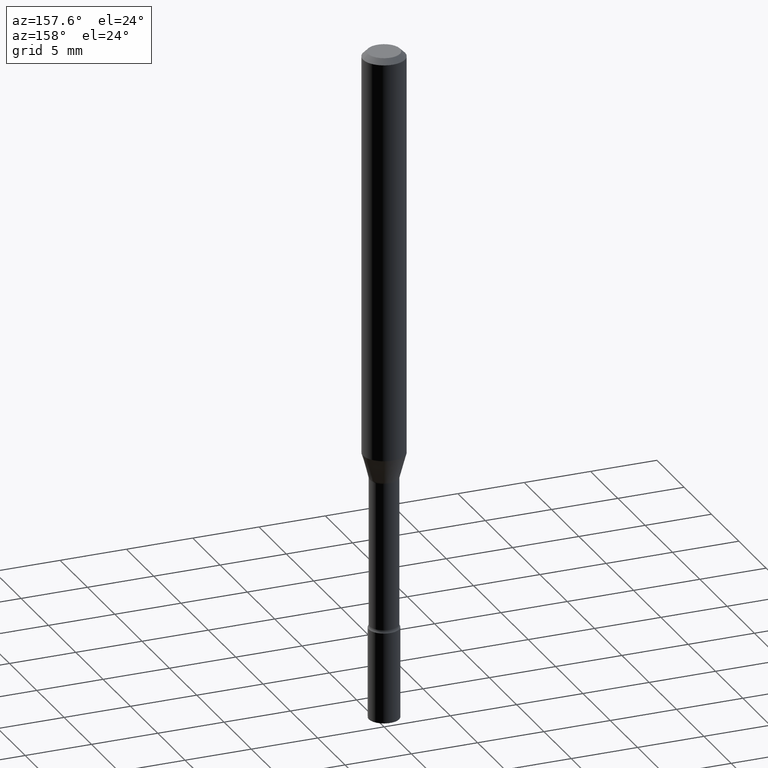
[diagram: clean part render]
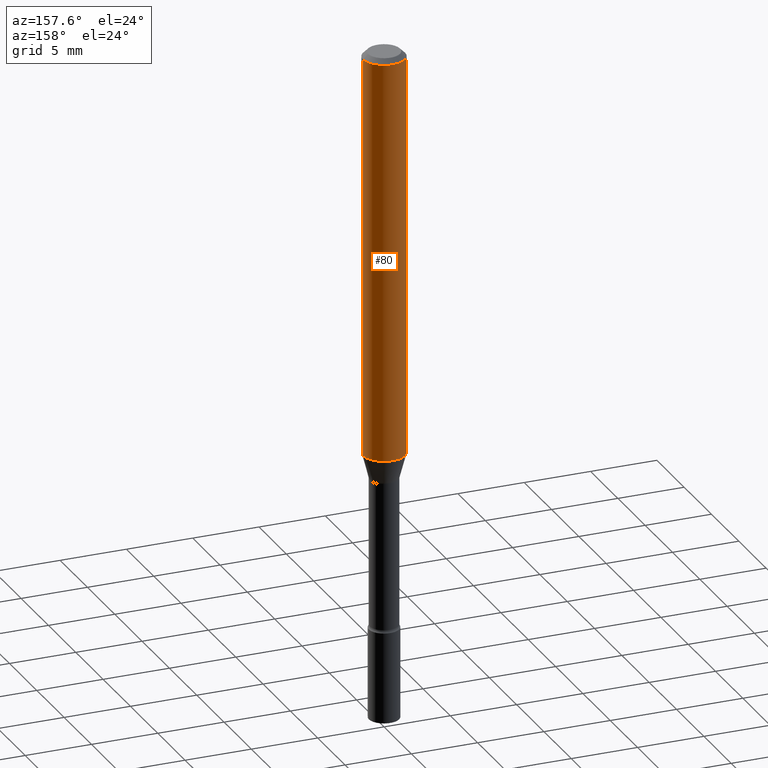
[diagram: same view with one face highlighted and labeled with its STEP entity id]
A machine part, auxiliary view. The second image highlights one B-rep face of the part: STEP entity #80.
In plain terms, the highlighted cylindrical surface (edge-blend (fillet) strip) has radius 1.5875 mm, axis along (-0, 0, 1).
Its self-contained STEP definition (entity closure, byte-faithful):
#16 = CARTESIAN_POINT ( 'NONE',  ( 2.945842472490219307E-29, -4.205882321564354559E-15, -1.204612573687108945 ) ) ;
#26 = DIRECTION ( 'NONE',  ( 1.000000000000000000, -6.982962677686266711E-15, 4.876176775795935793E-29 ) ) ;
#62 = DIRECTION ( 'NONE',  ( -2.445468806185136597E-29, 3.491481338843145583E-15, 1.000000000000000000 ) ) ;
#80 = ADVANCED_FACE ( 'NONE', ( #343 ), #308, .T. ) ;
#88 = LINE ( 'NONE', #128, #280 ) ;
#120 = ORIENTED_EDGE ( 'NONE', *, *, #431, .T. ) ;
#128 = CARTESIAN_POINT ( 'NONE',  ( -0.06250000000000000000, 4.440892098500626162E-16, -3.074334431409316114E-30 ) ) ;
#133 = AXIS2_PLACEMENT_3D ( 'NONE', #254, #62, #260 ) ;
#135 = EDGE_CURVE ( 'NONE', #517, #490, #482, .T. ) ;
#176 = DIRECTION ( 'NONE',  ( -2.445468806185136597E-29, 3.491481338843145583E-15, 1.000000000000000000 ) ) ;
#181 = ORIENTED_EDGE ( 'NONE', *, *, #135, .F. ) ;
#200 = DIRECTION ( 'NONE',  ( -2.445468806185136877E-29, 3.491481338843145188E-15, 1.000000000000000000 ) ) ;
#236 = EDGE_LOOP ( 'NONE', ( #515, #120, #181, #456 ) ) ;
#241 = DIRECTION ( 'NONE',  ( 1.000000000000000000, -6.982962677686270655E-15, 0.000000000000000000 ) ) ;
#242 = CARTESIAN_POINT ( 'NONE',  ( 0.06250000000000000000, -4.642317488919745439E-15, -1.204612573687108945 ) ) ;
#254 = CARTESIAN_POINT ( 'NONE',  ( 3.668203209277712094E-31, -5.237222008264728876E-17, -0.01500000000000003067 ) ) ;
#260 = DIRECTION ( 'NONE',  ( 1.000000000000000000, -6.982962677686266711E-15, 0.000000000000000000 ) ) ;
#272 = AXIS2_PLACEMENT_3D ( 'NONE', #16, #407, #241 ) ;
#273 = DIRECTION ( 'NONE',  ( -2.445468806185136877E-29, 3.491481338843145188E-15, 1.000000000000000000 ) ) ;
#279 = VECTOR ( 'NONE', #273, 39.37007874015748143 ) ;
#280 = VECTOR ( 'NONE', #200, 39.37007874015748143 ) ;
#283 = EDGE_CURVE ( 'NONE', #390, #517, #317, .T. ) ;
#292 = VERTEX_POINT ( 'NONE', #479 ) ;
#308 = CYLINDRICAL_SURFACE ( 'NONE', #334, 0.06250000000000000000 ) ;
#317 = LINE ( 'NONE', #439, #279 ) ;
#334 = AXIS2_PLACEMENT_3D ( 'NONE', #341, #176, #26 ) ;
#341 = CARTESIAN_POINT ( 'NONE',  ( 0.000000000000000000, 0.000000000000000000, 0.000000000000000000 ) ) ;
#343 = FACE_OUTER_BOUND ( 'NONE', #236, .T. ) ;
#390 = VERTEX_POINT ( 'NONE', #242 ) ;
#405 = EDGE_CURVE ( 'NONE', #390, #292, #462, .T. ) ;
#407 = DIRECTION ( 'NONE',  ( -2.445468806185136597E-29, 3.491481338843145583E-15, 1.000000000000000000 ) ) ;
#431 = EDGE_CURVE ( 'NONE', #292, #490, #88, .T. ) ;
#439 = CARTESIAN_POINT ( 'NONE',  ( 0.06250000000000000000, -4.364351673553916694E-16, 3.047610484872459871E-30 ) ) ;
#450 = CARTESIAN_POINT ( 'NONE',  ( -0.06250000000000000000, -1.685038060973438203E-15, -0.01500000000000003067 ) ) ;
#456 = ORIENTED_EDGE ( 'NONE', *, *, #283, .F. ) ;
#462 = CIRCLE ( 'NONE', #272, 0.06250000000000000000 ) ;
#479 = CARTESIAN_POINT ( 'NONE',  ( -0.06250000000000000000, -3.761793111714291154E-15, -1.204612573687108945 ) ) ;
#482 = CIRCLE ( 'NONE', #133, 0.06250000000000000000 ) ;
#490 = VERTEX_POINT ( 'NONE', #450 ) ;
#500 = CARTESIAN_POINT ( 'NONE',  ( 0.06250000000000000000, -4.888073874380389458E-16, -0.01500000000000003067 ) ) ;
#515 = ORIENTED_EDGE ( 'NONE', *, *, #405, .T. ) ;
#517 = VERTEX_POINT ( 'NONE', #500 ) ;